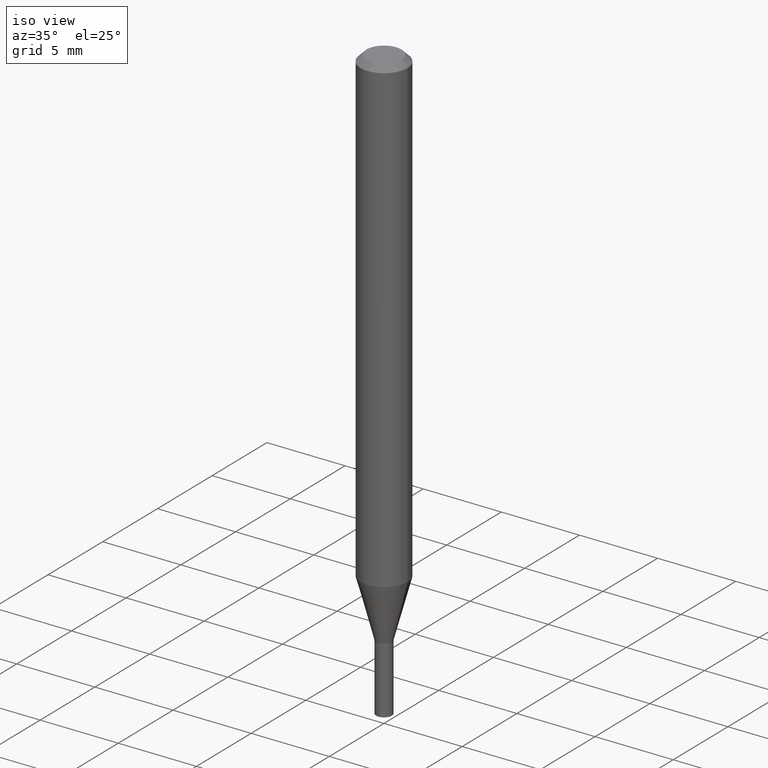
[diagram: clean part render]
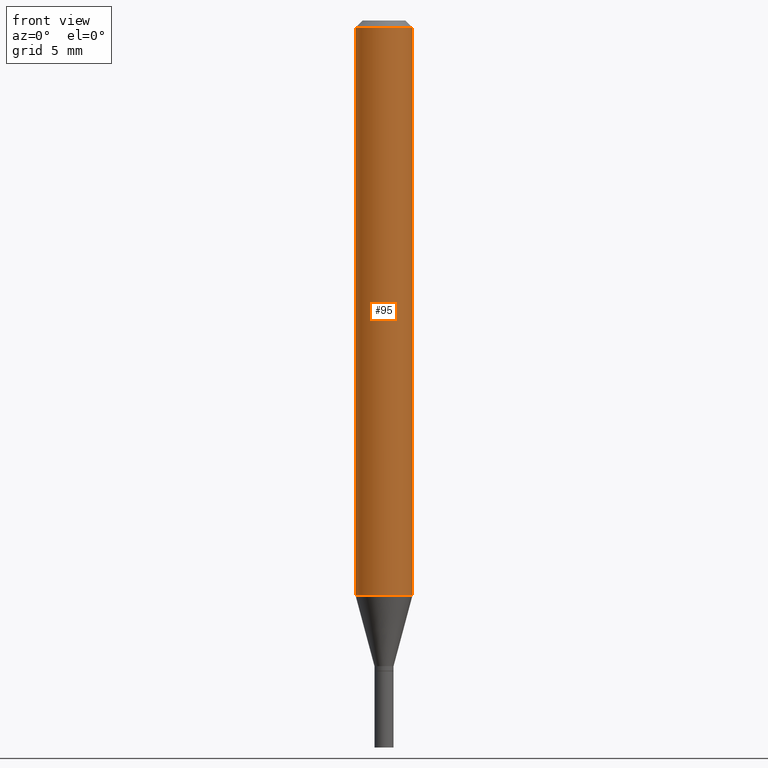
[diagram: tour spotlight — one face highlighted and labeled with its STEP entity id]
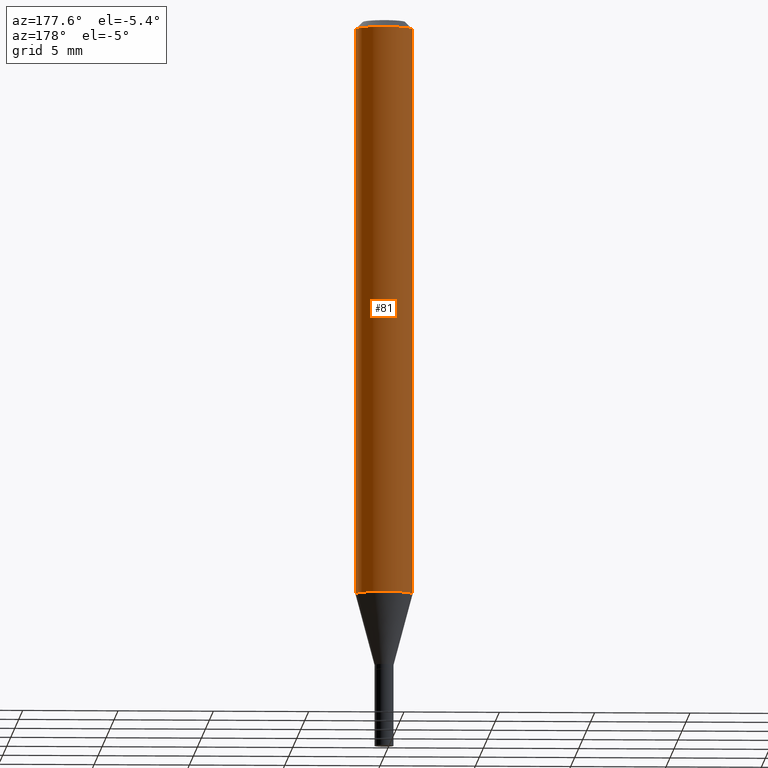
[diagram: tour spotlight — one face highlighted and labeled with its STEP entity id]
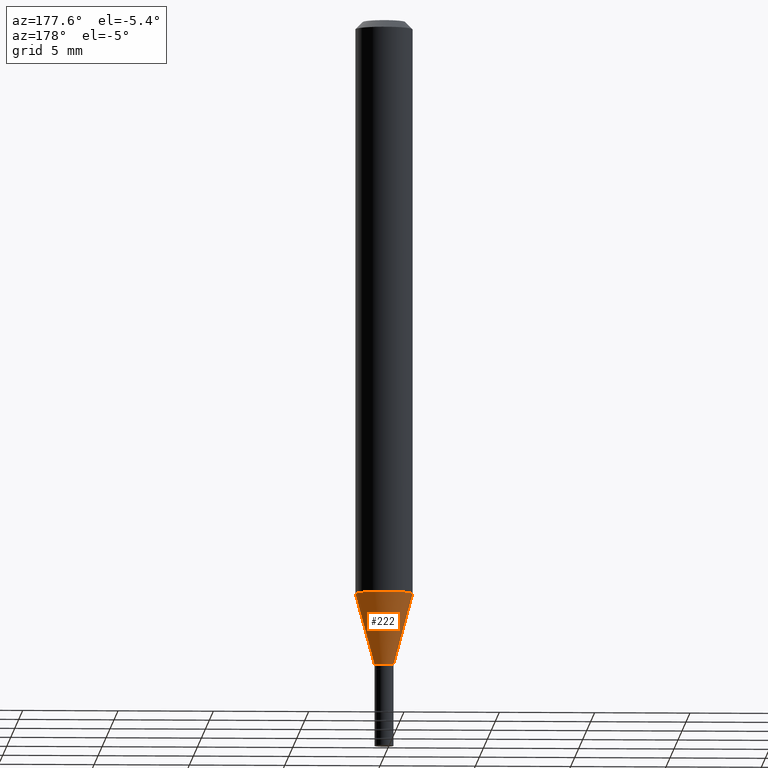
[diagram: tour spotlight — one face highlighted and labeled with its STEP entity id]
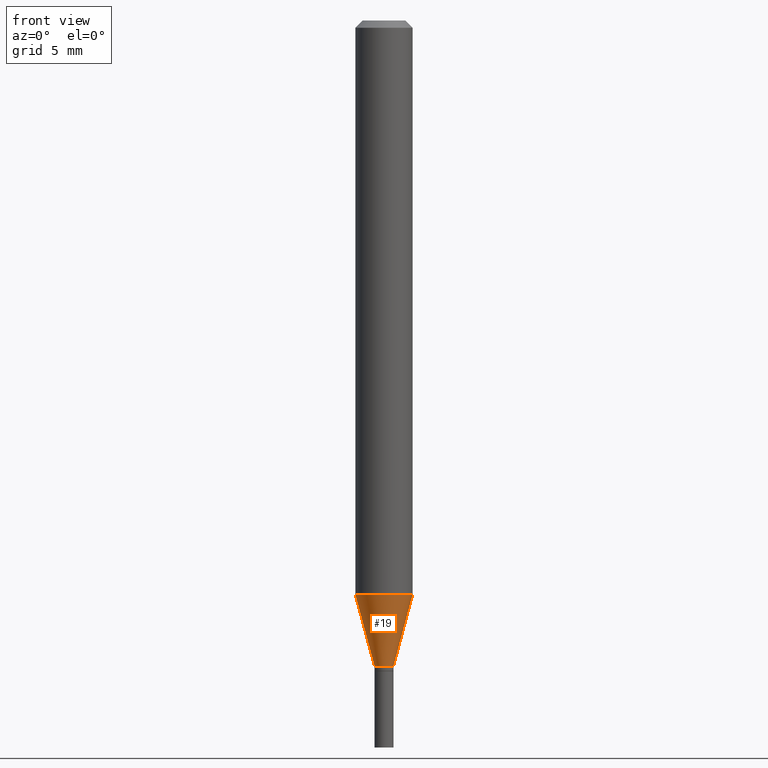
[diagram: tour spotlight — one face highlighted and labeled with its STEP entity id]
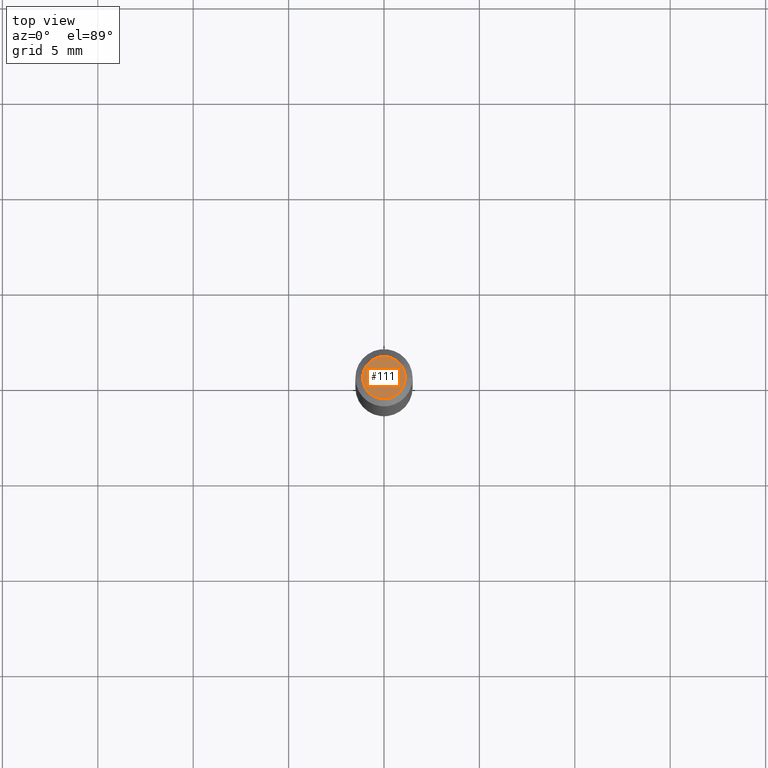
[diagram: tour spotlight — one face highlighted and labeled with its STEP entity id]
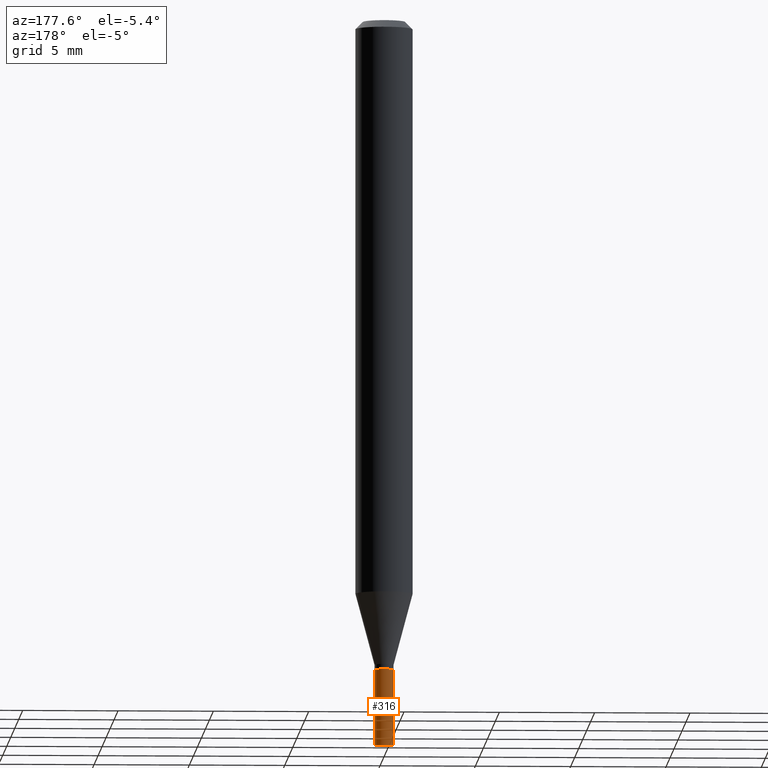
[diagram: tour spotlight — one face highlighted and labeled with its STEP entity id]
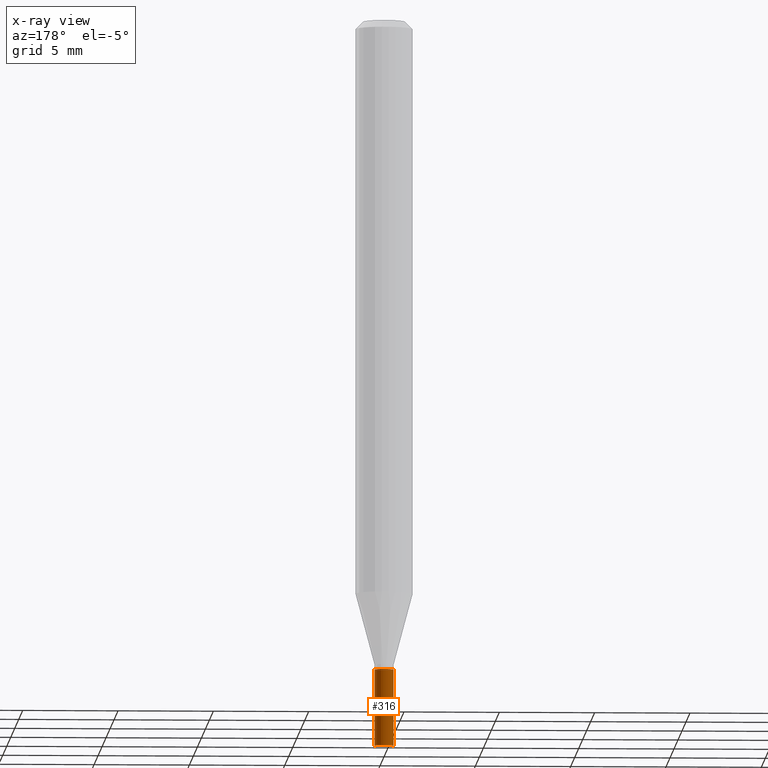
[diagram: x-ray of the same camera — body ghosted, this tour face saturated]
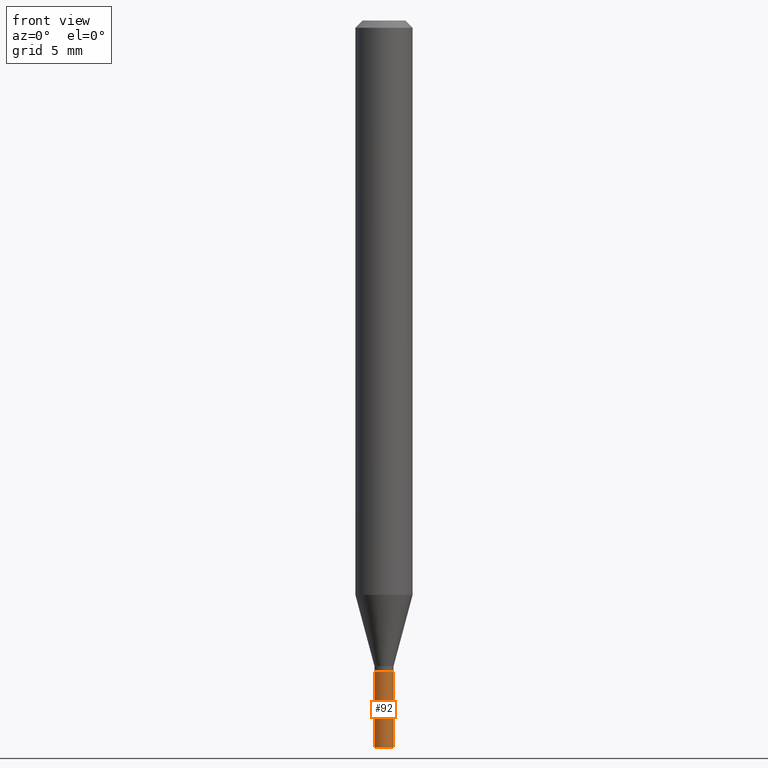
[diagram: tour spotlight — one face highlighted and labeled with its STEP entity id]
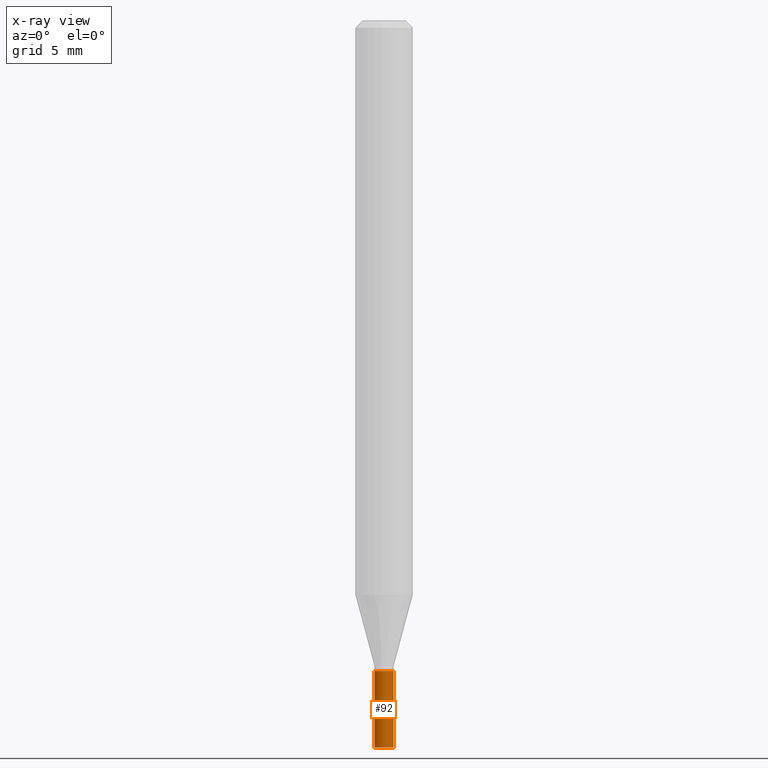
[diagram: x-ray of the same camera — body ghosted, this tour face saturated]
A machine part: a face-by-face anatomy tour. The part has 16 B-rep faces; the first image is the clean iso view, then the 7 largest visible faces are spotlighted one at a time (largest first), each with its STEP entity span.

Face 1 — front view, entity #95. In plain terms, the highlighted cylindrical surface (edge-blend (fillet) strip) has radius 1.4999 mm, axis along (-0, 0, 1).
Definition (entity closure, byte-faithful):
#3 = FACE_OUTER_BOUND ( 'NONE', #15, .T. ) ;
#7 = DIRECTION ( 'NONE',  ( -2.445468806185136597E-29, 3.491481338843145583E-15, 1.000000000000000000 ) ) ;
#11 = DIRECTION ( 'NONE',  ( -2.445468806185136597E-29, 3.491481338843145583E-15, 1.000000000000000000 ) ) ;
#15 = EDGE_LOOP ( 'NONE', ( #240, #99, #265, #268 ) ) ;
#16 = LINE ( 'NONE', #18, #438 ) ;
#18 = CARTESIAN_POINT ( 'NONE',  ( 0.05905000000000001914, -4.123439461173741806E-16, 2.879382386107500921E-30 ) ) ;
#23 = CARTESIAN_POINT ( 'NONE',  ( -0.05905000000000001914, -3.718331978600737710E-15, -1.185143800722164409 ) ) ;
#34 = AXIS2_PLACEMENT_3D ( 'NONE', #254, #7, #158 ) ;
#35 = DIRECTION ( 'NONE',  ( -2.445468806185136597E-29, 3.491481338843145583E-15, 1.000000000000000000 ) ) ;
#37 = EDGE_CURVE ( 'NONE', #200, #418, #196, .T. ) ;
#65 = CARTESIAN_POINT ( 'NONE',  ( 0.05905000000000001914, -4.647161662000214077E-16, -0.01499999999999999944 ) ) ;
#72 = CARTESIAN_POINT ( 'NONE',  ( 0.000000000000000000, 0.000000000000000000, 0.000000000000000000 ) ) ;
#79 = DIRECTION ( 'NONE',  ( 1.000000000000000000, -6.982962677686266711E-15, 0.000000000000000000 ) ) ;
#95 = ADVANCED_FACE ( 'NONE', ( #3 ), #286, .T. ) ;
#99 = ORIENTED_EDGE ( 'NONE', *, *, #419, .T. ) ;
#105 = AXIS2_PLACEMENT_3D ( 'NONE', #248, #11, #79 ) ;
#130 = DIRECTION ( 'NONE',  ( -2.445468806185136877E-29, 3.491481338843145188E-15, 1.000000000000000000 ) ) ;
#145 = DIRECTION ( 'NONE',  ( -2.445468806185136877E-29, 3.491481338843145188E-15, 1.000000000000000000 ) ) ;
#151 = DIRECTION ( 'NONE',  ( 1.000000000000000000, -6.982962677686266711E-15, 4.876176775795935793E-29 ) ) ;
#158 = DIRECTION ( 'NONE',  ( 1.000000000000000000, -6.982962677686270655E-15, 0.000000000000000000 ) ) ;
#193 = EDGE_CURVE ( 'NONE', #435, #232, #16, .T. ) ;
#196 = LINE ( 'NONE', #211, #247 ) ;
#200 = VERTEX_POINT ( 'NONE', #23 ) ;
#211 = CARTESIAN_POINT ( 'NONE',  ( -0.05905000000000001914, 4.195754854663392958E-16, -2.904631170795522943E-30 ) ) ;
#232 = VERTEX_POINT ( 'NONE', #65 ) ;
#233 = CIRCLE ( 'NONE', #105, 0.05905000000000001914 ) ;
#240 = ORIENTED_EDGE ( 'NONE', *, *, #37, .F. ) ;
#247 = VECTOR ( 'NONE', #145, 39.37007874015748143 ) ;
#248 = CARTESIAN_POINT ( 'NONE',  ( 3.668203209277705088E-31, -5.237222008264718399E-17, -0.01499999999999999944 ) ) ;
#254 = CARTESIAN_POINT ( 'NONE',  ( 2.898232195509746702E-29, -4.137907464067076414E-15, -1.185143800722164409 ) ) ;
#265 = ORIENTED_EDGE ( 'NONE', *, *, #193, .T. ) ;
#268 = ORIENTED_EDGE ( 'NONE', *, *, #285, .F. ) ;
#285 = EDGE_CURVE ( 'NONE', #418, #232, #233, .T. ) ;
#286 = CYLINDRICAL_SURFACE ( 'NONE', #423, 0.05905000000000001914 ) ;
#318 = CIRCLE ( 'NONE', #34, 0.05905000000000001914 ) ;
#328 = CARTESIAN_POINT ( 'NONE',  ( -0.05905000000000001914, -1.675564356608522648E-15, -0.01499999999999999944 ) ) ;
#418 = VERTEX_POINT ( 'NONE', #328 ) ;
#419 = EDGE_CURVE ( 'NONE', #200, #435, #318, .T. ) ;
#423 = AXIS2_PLACEMENT_3D ( 'NONE', #72, #35, #151 ) ;
#435 = VERTEX_POINT ( 'NONE', #451 ) ;
#438 = VECTOR ( 'NONE', #130, 39.37007874015748143 ) ;
#451 = CARTESIAN_POINT ( 'NONE',  ( 0.05905000000000001914, -4.550251410184451334E-15, -1.185143800722164409 ) ) ;

Face 2 — auxiliary view, entity #81. In plain terms, the highlighted cylindrical surface (edge-blend (fillet) strip) has radius 1.4999 mm, axis along (-0, 0, 1).
Definition (entity closure, byte-faithful):
#16 = LINE ( 'NONE', #18, #438 ) ;
#18 = CARTESIAN_POINT ( 'NONE',  ( 0.05905000000000001914, -4.123439461173741806E-16, 2.879382386107500921E-30 ) ) ;
#23 = CARTESIAN_POINT ( 'NONE',  ( -0.05905000000000001914, -3.718331978600737710E-15, -1.185143800722164409 ) ) ;
#29 = CIRCLE ( 'NONE', #346, 0.05905000000000001914 ) ;
#32 = FACE_OUTER_BOUND ( 'NONE', #380, .T. ) ;
#33 = DIRECTION ( 'NONE',  ( -2.445468806185136597E-29, 3.491481338843145583E-15, 1.000000000000000000 ) ) ;
#36 = DIRECTION ( 'NONE',  ( 1.000000000000000000, -6.982962677686270655E-15, 0.000000000000000000 ) ) ;
#37 = EDGE_CURVE ( 'NONE', #200, #418, #196, .T. ) ;
#65 = CARTESIAN_POINT ( 'NONE',  ( 0.05905000000000001914, -4.647161662000214077E-16, -0.01499999999999999944 ) ) ;
#66 = DIRECTION ( 'NONE',  ( 1.000000000000000000, -6.982962677686266711E-15, 0.000000000000000000 ) ) ;
#81 = ADVANCED_FACE ( 'NONE', ( #32 ), #104, .T. ) ;
#103 = EDGE_CURVE ( 'NONE', #435, #200, #219, .T. ) ;
#104 = CYLINDRICAL_SURFACE ( 'NONE', #341, 0.05905000000000001914 ) ;
#112 = DIRECTION ( 'NONE',  ( -2.445468806185136597E-29, 3.491481338843145583E-15, 1.000000000000000000 ) ) ;
#130 = DIRECTION ( 'NONE',  ( -2.445468806185136877E-29, 3.491481338843145188E-15, 1.000000000000000000 ) ) ;
#145 = DIRECTION ( 'NONE',  ( -2.445468806185136877E-29, 3.491481338843145188E-15, 1.000000000000000000 ) ) ;
#146 = EDGE_CURVE ( 'NONE', #232, #418, #29, .T. ) ;
#193 = EDGE_CURVE ( 'NONE', #435, #232, #16, .T. ) ;
#196 = LINE ( 'NONE', #211, #247 ) ;
#200 = VERTEX_POINT ( 'NONE', #23 ) ;
#211 = CARTESIAN_POINT ( 'NONE',  ( -0.05905000000000001914, 4.195754854663392958E-16, -2.904631170795522943E-30 ) ) ;
#219 = CIRCLE ( 'NONE', #363, 0.05905000000000001914 ) ;
#232 = VERTEX_POINT ( 'NONE', #65 ) ;
#245 = CARTESIAN_POINT ( 'NONE',  ( 0.000000000000000000, 0.000000000000000000, 0.000000000000000000 ) ) ;
#246 = DIRECTION ( 'NONE',  ( 1.000000000000000000, -6.982962677686266711E-15, 4.876176775795935793E-29 ) ) ;
#247 = VECTOR ( 'NONE', #145, 39.37007874015748143 ) ;
#281 = CARTESIAN_POINT ( 'NONE',  ( 2.898232195509746702E-29, -4.137907464067076414E-15, -1.185143800722164409 ) ) ;
#305 = ORIENTED_EDGE ( 'NONE', *, *, #103, .T. ) ;
#315 = DIRECTION ( 'NONE',  ( -2.445468806185136597E-29, 3.491481338843145583E-15, 1.000000000000000000 ) ) ;
#328 = CARTESIAN_POINT ( 'NONE',  ( -0.05905000000000001914, -1.675564356608522648E-15, -0.01499999999999999944 ) ) ;
#337 = ORIENTED_EDGE ( 'NONE', *, *, #146, .F. ) ;
#341 = AXIS2_PLACEMENT_3D ( 'NONE', #245, #315, #246 ) ;
#346 = AXIS2_PLACEMENT_3D ( 'NONE', #427, #112, #66 ) ;
#363 = AXIS2_PLACEMENT_3D ( 'NONE', #281, #33, #36 ) ;
#380 = EDGE_LOOP ( 'NONE', ( #305, #445, #337, #398 ) ) ;
#398 = ORIENTED_EDGE ( 'NONE', *, *, #193, .F. ) ;
#418 = VERTEX_POINT ( 'NONE', #328 ) ;
#427 = CARTESIAN_POINT ( 'NONE',  ( 3.668203209277705088E-31, -5.237222008264718399E-17, -0.01499999999999999944 ) ) ;
#435 = VERTEX_POINT ( 'NONE', #451 ) ;
#438 = VECTOR ( 'NONE', #130, 39.37007874015748143 ) ;
#445 = ORIENTED_EDGE ( 'NONE', *, *, #37, .T. ) ;
#451 = CARTESIAN_POINT ( 'NONE',  ( 0.05905000000000001914, -4.550251410184451334E-15, -1.185143800722164409 ) ) ;

Face 3 — auxiliary view, entity #222. In plain terms, the highlighted conical surface has half-angle 15 deg.
Definition (entity closure, byte-faithful):
#12 = VERTEX_POINT ( 'NONE', #198 ) ;
#23 = CARTESIAN_POINT ( 'NONE',  ( -0.05905000000000001914, -3.718331978600737710E-15, -1.185143800722164409 ) ) ;
#27 = EDGE_CURVE ( 'NONE', #87, #435, #377, .T. ) ;
#33 = DIRECTION ( 'NONE',  ( -2.445468806185136597E-29, 3.491481338843145583E-15, 1.000000000000000000 ) ) ;
#36 = DIRECTION ( 'NONE',  ( 1.000000000000000000, -6.982962677686270655E-15, 0.000000000000000000 ) ) ;
#75 = CARTESIAN_POINT ( 'NONE',  ( 0.01969999999999989468, -4.788217508089488526E-15, -1.331999999999999851 ) ) ;
#87 = VERTEX_POINT ( 'NONE', #75 ) ;
#103 = EDGE_CURVE ( 'NONE', #435, #200, #219, .T. ) ;
#114 = VECTOR ( 'NONE', #335, 39.37007874015748854 ) ;
#117 = VECTOR ( 'NONE', #132, 39.37007874015748854 ) ;
#132 = DIRECTION ( 'NONE',  ( -0.2588190451025211836, 5.211531920934547886E-15, 0.9659258262890679791 ) ) ;
#144 = CONICAL_SURFACE ( 'NONE', #167, 0.01969999999999989468, 0.2617993877991499074 ) ;
#167 = AXIS2_PLACEMENT_3D ( 'NONE', #282, #175, #279 ) ;
#170 = ORIENTED_EDGE ( 'NONE', *, *, #103, .F. ) ;
#175 = DIRECTION ( 'NONE',  ( -2.445468806185136597E-29, 3.491481338843145583E-15, 1.000000000000000000 ) ) ;
#188 = ORIENTED_EDGE ( 'NONE', *, *, #461, .T. ) ;
#192 = EDGE_LOOP ( 'NONE', ( #270, #188, #170, #334 ) ) ;
#198 = CARTESIAN_POINT ( 'NONE',  ( -0.01969999999999989468, -4.114504101497534251E-15, -1.331999999999999851 ) ) ;
#200 = VERTEX_POINT ( 'NONE', #23 ) ;
#219 = CIRCLE ( 'NONE', #363, 0.05905000000000001914 ) ;
#222 = ADVANCED_FACE ( 'NONE', ( #422 ), #144, .T. ) ;
#249 = CIRCLE ( 'NONE', #301, 0.01969999999999989468 ) ;
#262 = CARTESIAN_POINT ( 'NONE',  ( 3.257364449838602072E-29, -4.650653143339069312E-15, -1.331999999999999851 ) ) ;
#269 = LINE ( 'NONE', #453, #117 ) ;
#270 = ORIENTED_EDGE ( 'NONE', *, *, #433, .T. ) ;
#279 = DIRECTION ( 'NONE',  ( 1.000000000000000000, -6.982962677686266711E-15, 0.000000000000000000 ) ) ;
#281 = CARTESIAN_POINT ( 'NONE',  ( 2.898232195509746702E-29, -4.137907464067076414E-15, -1.185143800722164409 ) ) ;
#282 = CARTESIAN_POINT ( 'NONE',  ( 3.257364449838602072E-29, -4.650653143339069312E-15, -1.331999999999999851 ) ) ;
#299 = DIRECTION ( 'NONE',  ( 1.000000000000000000, -6.982962677686266711E-15, 0.000000000000000000 ) ) ;
#301 = AXIS2_PLACEMENT_3D ( 'NONE', #262, #403, #299 ) ;
#313 = CARTESIAN_POINT ( 'NONE',  ( 0.01969999999999989468, -4.788217508089488526E-15, -1.331999999999999851 ) ) ;
#334 = ORIENTED_EDGE ( 'NONE', *, *, #27, .F. ) ;
#335 = DIRECTION ( 'NONE',  ( 0.2588190451025211836, 1.565188264969622559E-15, 0.9659258262890679791 ) ) ;
#363 = AXIS2_PLACEMENT_3D ( 'NONE', #281, #33, #36 ) ;
#377 = LINE ( 'NONE', #313, #114 ) ;
#403 = DIRECTION ( 'NONE',  ( -2.445468806185136597E-29, 3.491481338843145583E-15, 1.000000000000000000 ) ) ;
#422 = FACE_OUTER_BOUND ( 'NONE', #192, .T. ) ;
#433 = EDGE_CURVE ( 'NONE', #87, #12, #249, .T. ) ;
#435 = VERTEX_POINT ( 'NONE', #451 ) ;
#451 = CARTESIAN_POINT ( 'NONE',  ( 0.05905000000000001914, -4.550251410184451334E-15, -1.185143800722164409 ) ) ;
#453 = CARTESIAN_POINT ( 'NONE',  ( -0.01969999999999989468, -4.510676224394330003E-15, -1.331999999999999851 ) ) ;
#461 = EDGE_CURVE ( 'NONE', #12, #200, #269, .T. ) ;

Face 4 — front view, entity #19. In plain terms, the highlighted conical surface has half-angle 15 deg.
Definition (entity closure, byte-faithful):
#7 = DIRECTION ( 'NONE',  ( -2.445468806185136597E-29, 3.491481338843145583E-15, 1.000000000000000000 ) ) ;
#10 = FACE_OUTER_BOUND ( 'NONE', #259, .T. ) ;
#12 = VERTEX_POINT ( 'NONE', #198 ) ;
#19 = ADVANCED_FACE ( 'NONE', ( #10 ), #389, .T. ) ;
#20 = AXIS2_PLACEMENT_3D ( 'NONE', #242, #465, #379 ) ;
#23 = CARTESIAN_POINT ( 'NONE',  ( -0.05905000000000001914, -3.718331978600737710E-15, -1.185143800722164409 ) ) ;
#27 = EDGE_CURVE ( 'NONE', #87, #435, #377, .T. ) ;
#34 = AXIS2_PLACEMENT_3D ( 'NONE', #254, #7, #158 ) ;
#47 = ORIENTED_EDGE ( 'NONE', *, *, #461, .F. ) ;
#64 = ORIENTED_EDGE ( 'NONE', *, *, #27, .T. ) ;
#75 = CARTESIAN_POINT ( 'NONE',  ( 0.01969999999999989468, -4.788217508089488526E-15, -1.331999999999999851 ) ) ;
#87 = VERTEX_POINT ( 'NONE', #75 ) ;
#100 = DIRECTION ( 'NONE',  ( 1.000000000000000000, -6.982962677686266711E-15, 0.000000000000000000 ) ) ;
#102 = ORIENTED_EDGE ( 'NONE', *, *, #419, .F. ) ;
#114 = VECTOR ( 'NONE', #335, 39.37007874015748854 ) ;
#117 = VECTOR ( 'NONE', #132, 39.37007874015748854 ) ;
#128 = EDGE_CURVE ( 'NONE', #12, #87, #226, .T. ) ;
#132 = DIRECTION ( 'NONE',  ( -0.2588190451025211836, 5.211531920934547886E-15, 0.9659258262890679791 ) ) ;
#158 = DIRECTION ( 'NONE',  ( 1.000000000000000000, -6.982962677686270655E-15, 0.000000000000000000 ) ) ;
#186 = CARTESIAN_POINT ( 'NONE',  ( 3.257364449838602072E-29, -4.650653143339069312E-15, -1.331999999999999851 ) ) ;
#198 = CARTESIAN_POINT ( 'NONE',  ( -0.01969999999999989468, -4.114504101497534251E-15, -1.331999999999999851 ) ) ;
#200 = VERTEX_POINT ( 'NONE', #23 ) ;
#208 = ORIENTED_EDGE ( 'NONE', *, *, #128, .T. ) ;
#226 = CIRCLE ( 'NONE', #20, 0.01969999999999989468 ) ;
#242 = CARTESIAN_POINT ( 'NONE',  ( 3.257364449838602072E-29, -4.650653143339069312E-15, -1.331999999999999851 ) ) ;
#254 = CARTESIAN_POINT ( 'NONE',  ( 2.898232195509746702E-29, -4.137907464067076414E-15, -1.185143800722164409 ) ) ;
#259 = EDGE_LOOP ( 'NONE', ( #47, #208, #64, #102 ) ) ;
#269 = LINE ( 'NONE', #453, #117 ) ;
#312 = AXIS2_PLACEMENT_3D ( 'NONE', #186, #417, #100 ) ;
#313 = CARTESIAN_POINT ( 'NONE',  ( 0.01969999999999989468, -4.788217508089488526E-15, -1.331999999999999851 ) ) ;
#318 = CIRCLE ( 'NONE', #34, 0.05905000000000001914 ) ;
#335 = DIRECTION ( 'NONE',  ( 0.2588190451025211836, 1.565188264969622559E-15, 0.9659258262890679791 ) ) ;
#377 = LINE ( 'NONE', #313, #114 ) ;
#379 = DIRECTION ( 'NONE',  ( 1.000000000000000000, -6.982962677686266711E-15, 0.000000000000000000 ) ) ;
#389 = CONICAL_SURFACE ( 'NONE', #312, 0.01969999999999989468, 0.2617993877991499074 ) ;
#417 = DIRECTION ( 'NONE',  ( -2.445468806185136597E-29, 3.491481338843145583E-15, 1.000000000000000000 ) ) ;
#419 = EDGE_CURVE ( 'NONE', #200, #435, #318, .T. ) ;
#435 = VERTEX_POINT ( 'NONE', #451 ) ;
#451 = CARTESIAN_POINT ( 'NONE',  ( 0.05905000000000001914, -4.550251410184451334E-15, -1.185143800722164409 ) ) ;
#453 = CARTESIAN_POINT ( 'NONE',  ( -0.01969999999999989468, -4.510676224394330003E-15, -1.331999999999999851 ) ) ;
#461 = EDGE_CURVE ( 'NONE', #12, #200, #269, .T. ) ;
#465 = DIRECTION ( 'NONE',  ( -2.445468806185136597E-29, 3.491481338843145583E-15, 1.000000000000000000 ) ) ;

Face 5 — top view, entity #111. In plain terms, the highlighted planar face has unit normal (0, -0, -1).
Definition (entity closure, byte-faithful):
#50 = AXIS2_PLACEMENT_3D ( 'NONE', #207, #460, #424 ) ;
#69 = DIRECTION ( 'NONE',  ( 1.000000000000000000, -6.982962677686265922E-15, 4.819687581474398999E-29 ) ) ;
#90 = DIRECTION ( 'NONE',  ( 1.000000000000000000, -6.982962677686265922E-15, 4.819687581474398999E-29 ) ) ;
#96 = ORIENTED_EDGE ( 'NONE', *, *, #425, .T. ) ;
#98 = CIRCLE ( 'NONE', #122, 0.04404999999999999888 ) ;
#111 = ADVANCED_FACE ( 'NONE', ( #322 ), #354, .F. ) ;
#122 = AXIS2_PLACEMENT_3D ( 'NONE', #294, #303, #90 ) ;
#150 = CARTESIAN_POINT ( 'NONE',  ( 0.04404999999999999888, -3.798447818264455642E-16, 3.533548453838735986E-16 ) ) ;
#206 = CIRCLE ( 'NONE', #280, 0.04404999999999999888 ) ;
#207 = CARTESIAN_POINT ( 'NONE',  ( 3.075995059520799729E-16, 0.04404999999999999888, 2.287766971589501637E-17 ) ) ;
#236 = EDGE_LOOP ( 'NONE', ( #96, #277 ) ) ;
#252 = EDGE_CURVE ( 'NONE', #402, #330, #206, .T. ) ;
#277 = ORIENTED_EDGE ( 'NONE', *, *, #252, .T. ) ;
#280 = AXIS2_PLACEMENT_3D ( 'NONE', #384, #466, #69 ) ;
#294 = CARTESIAN_POINT ( 'NONE',  ( -8.641182519006289553E-45, 1.233731848647591164E-30, 3.533548453838711334E-16 ) ) ;
#303 = DIRECTION ( 'NONE',  ( -2.445468806185136597E-29, 3.491481338843145583E-15, 1.000000000000000000 ) ) ;
#322 = FACE_OUTER_BOUND ( 'NONE', #236, .T. ) ;
#327 = CARTESIAN_POINT ( 'NONE',  ( -0.04404999999999999888, 3.337856159934041534E-16, 3.533548453838689148E-16 ) ) ;
#330 = VERTEX_POINT ( 'NONE', #327 ) ;
#354 = PLANE ( 'NONE',  #50 ) ;
#384 = CARTESIAN_POINT ( 'NONE',  ( -8.641182519006289553E-45, 1.233731848647591164E-30, 3.533548453838711334E-16 ) ) ;
#402 = VERTEX_POINT ( 'NONE', #150 ) ;
#424 = DIRECTION ( 'NONE',  ( -1.000000000000000000, 6.982962677686265922E-15, -4.876176775795935793E-29 ) ) ;
#425 = EDGE_CURVE ( 'NONE', #330, #402, #98, .T. ) ;
#460 = DIRECTION ( 'NONE',  ( 2.438088387897960049E-29, -3.491481338843145188E-15, -1.000000000000000000 ) ) ;
#466 = DIRECTION ( 'NONE',  ( -2.445468806185136597E-29, 3.491481338843145583E-15, 1.000000000000000000 ) ) ;

Face 6 — auxiliary view, entity #316. An x-ray twin of the same camera follows (body ghosted, this face saturated) — the face is partly hidden behind the body. In plain terms, the highlighted cylindrical surface (edge-blend (fillet) strip) has radius 0.5004 mm, axis along (-0, 0, 1).
Definition (entity closure, byte-faithful):
#8 = ORIENTED_EDGE ( 'NONE', *, *, #166, .F. ) ;
#22 = ORIENTED_EDGE ( 'NONE', *, *, #400, .F. ) ;
#38 = DIRECTION ( 'NONE',  ( -2.445468806185136597E-29, 3.491481338843145583E-15, 1.000000000000000000 ) ) ;
#46 = DIRECTION ( 'NONE',  ( 1.000000000000000000, -6.982962677686278543E-15, 0.000000000000000000 ) ) ;
#54 = DIRECTION ( 'NONE',  ( -2.445468806185136877E-29, 3.491481338843145188E-15, 1.000000000000000000 ) ) ;
#60 = ORIENTED_EDGE ( 'NONE', *, *, #381, .T. ) ;
#73 = AXIS2_PLACEMENT_3D ( 'NONE', #118, #38, #434 ) ;
#80 = VECTOR ( 'NONE', #54, 39.37007874015748143 ) ;
#97 = AXIS2_PLACEMENT_3D ( 'NONE', #116, #258, #124 ) ;
#106 = CARTESIAN_POINT ( 'NONE',  ( -0.01969999999999999876, 1.399769189447397278E-16, -9.690302127802162501E-31 ) ) ;
#108 = LINE ( 'NONE', #106, #253 ) ;
#116 = CARTESIAN_POINT ( 'NONE',  ( 0.000000000000000000, 0.000000000000000000, 0.000000000000000000 ) ) ;
#118 = CARTESIAN_POINT ( 'NONE',  ( 3.668203209277704895E-29, -5.237222008264718177E-15, -1.500000000000000222 ) ) ;
#119 = VERTEX_POINT ( 'NONE', #177 ) ;
#124 = DIRECTION ( 'NONE',  ( 1.000000000000000000, -6.982962677686265922E-15, 4.876176775795935232E-29 ) ) ;
#127 = VERTEX_POINT ( 'NONE', #239 ) ;
#166 = EDGE_CURVE ( 'NONE', #443, #119, #338, .T. ) ;
#169 = VERTEX_POINT ( 'NONE', #416 ) ;
#173 = ORIENTED_EDGE ( 'NONE', *, *, #230, .T. ) ;
#177 = CARTESIAN_POINT ( 'NONE',  ( 0.01969999999999999876, -4.824878062147343257E-15, -1.342500000000000249 ) ) ;
#178 = CIRCLE ( 'NONE', #440, 0.01969999999999999876 ) ;
#227 = CARTESIAN_POINT ( 'NONE',  ( 0.01969999999999999876, -5.374786373015138180E-15, -1.500000000000000222 ) ) ;
#230 = EDGE_CURVE ( 'NONE', #127, #169, #108, .T. ) ;
#239 = CARTESIAN_POINT ( 'NONE',  ( -0.01969999999999999876, -4.822290933886080617E-15, -1.500000000000000222 ) ) ;
#253 = VECTOR ( 'NONE', #319, 39.37007874015748143 ) ;
#258 = DIRECTION ( 'NONE',  ( -2.445468806185136597E-29, 3.491481338843145583E-15, 1.000000000000000000 ) ) ;
#261 = EDGE_LOOP ( 'NONE', ( #60, #173, #22, #8 ) ) ;
#271 = CIRCLE ( 'NONE', #73, 0.01969999999999999876 ) ;
#316 = ADVANCED_FACE ( 'NONE', ( #442 ), #397, .T. ) ;
#319 = DIRECTION ( 'NONE',  ( -2.445468806185136877E-29, 3.491481338843145188E-15, 1.000000000000000000 ) ) ;
#338 = LINE ( 'NONE', #367, #80 ) ;
#367 = CARTESIAN_POINT ( 'NONE',  ( 0.01969999999999999876, -1.375643647504194363E-16, 9.606068248317991466E-31 ) ) ;
#381 = EDGE_CURVE ( 'NONE', #443, #127, #271, .T. ) ;
#391 = DIRECTION ( 'NONE',  ( -2.445468806185136597E-29, 3.491481338843145583E-15, 1.000000000000000000 ) ) ;
#394 = CARTESIAN_POINT ( 'NONE',  ( 3.283041872303546419E-29, -4.687313697396923253E-15, -1.342500000000000249 ) ) ;
#397 = CYLINDRICAL_SURFACE ( 'NONE', #97, 0.01969999999999999876 ) ;
#400 = EDGE_CURVE ( 'NONE', #119, #169, #178, .T. ) ;
#416 = CARTESIAN_POINT ( 'NONE',  ( -0.01969999999999999876, -4.822290933886080617E-15, -1.342500000000000249 ) ) ;
#434 = DIRECTION ( 'NONE',  ( 1.000000000000000000, -6.982962677686278543E-15, 0.000000000000000000 ) ) ;
#440 = AXIS2_PLACEMENT_3D ( 'NONE', #394, #391, #46 ) ;
#442 = FACE_OUTER_BOUND ( 'NONE', #261, .T. ) ;
#443 = VERTEX_POINT ( 'NONE', #227 ) ;

Face 7 — front view, entity #92. An x-ray twin of the same camera follows (body ghosted, this face saturated) — the face is partly hidden behind the body. In plain terms, the highlighted cylindrical surface (edge-blend (fillet) strip) has radius 0.5004 mm, axis along (-0, 0, 1).
Definition (entity closure, byte-faithful):
#1 = DIRECTION ( 'NONE',  ( 1.000000000000000000, -6.982962677686278543E-15, 0.000000000000000000 ) ) ;
#54 = DIRECTION ( 'NONE',  ( -2.445468806185136877E-29, 3.491481338843145188E-15, 1.000000000000000000 ) ) ;
#58 = CIRCLE ( 'NONE', #234, 0.01969999999999999876 ) ;
#76 = EDGE_CURVE ( 'NONE', #127, #443, #241, .T. ) ;
#80 = VECTOR ( 'NONE', #54, 39.37007874015748143 ) ;
#92 = ADVANCED_FACE ( 'NONE', ( #143 ), #214, .T. ) ;
#106 = CARTESIAN_POINT ( 'NONE',  ( -0.01969999999999999876, 1.399769189447397278E-16, -9.690302127802162501E-31 ) ) ;
#108 = LINE ( 'NONE', #106, #253 ) ;
#119 = VERTEX_POINT ( 'NONE', #177 ) ;
#127 = VERTEX_POINT ( 'NONE', #239 ) ;
#131 = AXIS2_PLACEMENT_3D ( 'NONE', #388, #390, #355 ) ;
#143 = FACE_OUTER_BOUND ( 'NONE', #457, .T. ) ;
#166 = EDGE_CURVE ( 'NONE', #443, #119, #338, .T. ) ;
#169 = VERTEX_POINT ( 'NONE', #416 ) ;
#177 = CARTESIAN_POINT ( 'NONE',  ( 0.01969999999999999876, -4.824878062147343257E-15, -1.342500000000000249 ) ) ;
#187 = DIRECTION ( 'NONE',  ( -2.445468806185136597E-29, 3.491481338843145583E-15, 1.000000000000000000 ) ) ;
#205 = ORIENTED_EDGE ( 'NONE', *, *, #395, .F. ) ;
#214 = CYLINDRICAL_SURFACE ( 'NONE', #131, 0.01969999999999999876 ) ;
#227 = CARTESIAN_POINT ( 'NONE',  ( 0.01969999999999999876, -5.374786373015138180E-15, -1.500000000000000222 ) ) ;
#230 = EDGE_CURVE ( 'NONE', #127, #169, #108, .T. ) ;
#234 = AXIS2_PLACEMENT_3D ( 'NONE', #432, #187, #250 ) ;
#239 = CARTESIAN_POINT ( 'NONE',  ( -0.01969999999999999876, -4.822290933886080617E-15, -1.500000000000000222 ) ) ;
#241 = CIRCLE ( 'NONE', #456, 0.01969999999999999876 ) ;
#250 = DIRECTION ( 'NONE',  ( 1.000000000000000000, -6.982962677686278543E-15, 0.000000000000000000 ) ) ;
#253 = VECTOR ( 'NONE', #319, 39.37007874015748143 ) ;
#310 = ORIENTED_EDGE ( 'NONE', *, *, #230, .F. ) ;
#319 = DIRECTION ( 'NONE',  ( -2.445468806185136877E-29, 3.491481338843145188E-15, 1.000000000000000000 ) ) ;
#338 = LINE ( 'NONE', #367, #80 ) ;
#340 = ORIENTED_EDGE ( 'NONE', *, *, #166, .T. ) ;
#351 = CARTESIAN_POINT ( 'NONE',  ( 3.668203209277704895E-29, -5.237222008264718177E-15, -1.500000000000000222 ) ) ;
#355 = DIRECTION ( 'NONE',  ( 1.000000000000000000, -6.982962677686265922E-15, 4.876176775795935232E-29 ) ) ;
#367 = CARTESIAN_POINT ( 'NONE',  ( 0.01969999999999999876, -1.375643647504194363E-16, 9.606068248317991466E-31 ) ) ;
#388 = CARTESIAN_POINT ( 'NONE',  ( 0.000000000000000000, 0.000000000000000000, 0.000000000000000000 ) ) ;
#390 = DIRECTION ( 'NONE',  ( -2.445468806185136597E-29, 3.491481338843145583E-15, 1.000000000000000000 ) ) ;
#395 = EDGE_CURVE ( 'NONE', #169, #119, #58, .T. ) ;
#404 = ORIENTED_EDGE ( 'NONE', *, *, #76, .T. ) ;
#416 = CARTESIAN_POINT ( 'NONE',  ( -0.01969999999999999876, -4.822290933886080617E-15, -1.342500000000000249 ) ) ;
#421 = DIRECTION ( 'NONE',  ( -2.445468806185136597E-29, 3.491481338843145583E-15, 1.000000000000000000 ) ) ;
#432 = CARTESIAN_POINT ( 'NONE',  ( 3.283041872303546419E-29, -4.687313697396923253E-15, -1.342500000000000249 ) ) ;
#443 = VERTEX_POINT ( 'NONE', #227 ) ;
#456 = AXIS2_PLACEMENT_3D ( 'NONE', #351, #421, #1 ) ;
#457 = EDGE_LOOP ( 'NONE', ( #310, #404, #340, #205 ) ) ;